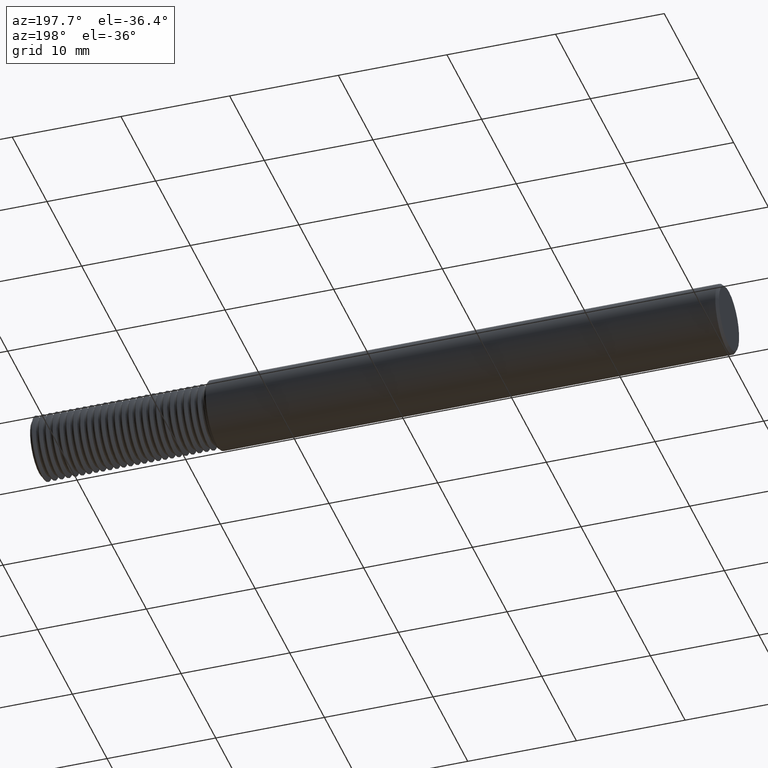
[diagram: clean part render]
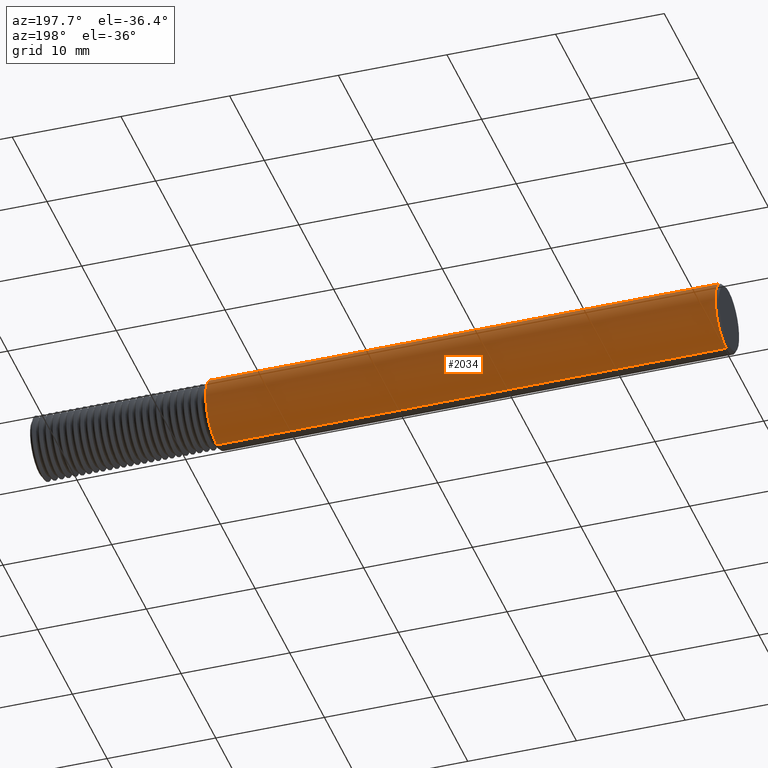
[diagram: same view with one face highlighted and labeled with its STEP entity id]
A machine part, auxiliary view. The second image highlights one B-rep face of the part: STEP entity #2034.
In plain terms, the highlighted cylindrical surface (edge-blend (fillet) strip) has radius 3.1712 mm, axis along (1, -0, -0).
Its self-contained STEP definition (entity closure, byte-faithful):
#11 = CARTESIAN_POINT ( 'NONE',  ( 0.01000000000000016674, 0.000000000000000000, 0.000000000000000000 ) ) ;
#350 = CARTESIAN_POINT ( 'NONE',  ( 0.01000000000000016674, 0.000000000000000000, -0.1248500000000000026 ) ) ;
#358 = LINE ( 'NONE', #4917, #4706 ) ;
#364 = AXIS2_PLACEMENT_3D ( 'NONE', #11, #412, #1272 ) ;
#371 = ORIENTED_EDGE ( 'NONE', *, *, #4272, .F. ) ;
#412 = DIRECTION ( 'NONE',  ( 1.000000000000000000, -0.000000000000000000, -0.000000000000000000 ) ) ;
#452 = CIRCLE ( 'NONE', #4056, 0.1248500000000000026 ) ;
#616 = DIRECTION ( 'NONE',  ( 1.000000000000000000, -0.000000000000000000, -0.000000000000000000 ) ) ;
#670 = EDGE_LOOP ( 'NONE', ( #1659, #2349, #1164, #371 ) ) ;
#783 = CARTESIAN_POINT ( 'NONE',  ( 0.01000000000000016674, 1.528971528735470422E-17, 0.1248500000000000026 ) ) ;
#1097 = VERTEX_POINT ( 'NONE', #4648 ) ;
#1164 = ORIENTED_EDGE ( 'NONE', *, *, #3960, .F. ) ;
#1272 = DIRECTION ( 'NONE',  ( 0.000000000000000000, 0.000000000000000000, 1.000000000000000000 ) ) ;
#1324 = EDGE_CURVE ( 'NONE', #3536, #3369, #2307, .T. ) ;
#1537 = EDGE_CURVE ( 'NONE', #3369, #1097, #1733, .T. ) ;
#1659 = ORIENTED_EDGE ( 'NONE', *, *, #1324, .T. ) ;
#1710 = CARTESIAN_POINT ( 'NONE',  ( 2.500000000000000000, 1.528971528735470422E-17, 0.1248500000000000026 ) ) ;
#1733 = LINE ( 'NONE', #1710, #4494 ) ;
#1825 = CARTESIAN_POINT ( 'NONE',  ( 2.500000000000000000, 0.000000000000000000, 0.000000000000000000 ) ) ;
#1854 = DIRECTION ( 'NONE',  ( 1.000000000000000000, -0.000000000000000000, -0.000000000000000000 ) ) ;
#2034 = ADVANCED_FACE ( 'NONE', ( #2652 ), #3917, .T. ) ;
#2307 = CIRCLE ( 'NONE', #364, 0.1248500000000000026 ) ;
#2349 = ORIENTED_EDGE ( 'NONE', *, *, #1537, .T. ) ;
#2519 = CARTESIAN_POINT ( 'NONE',  ( 1.856150000000000411, 0.000000000000000000, -0.1248500000000000026 ) ) ;
#2652 = FACE_OUTER_BOUND ( 'NONE', #670, .T. ) ;
#2879 = VERTEX_POINT ( 'NONE', #2519 ) ;
#3061 = DIRECTION ( 'NONE',  ( 1.000000000000000000, -0.000000000000000000, -0.000000000000000000 ) ) ;
#3369 = VERTEX_POINT ( 'NONE', #783 ) ;
#3502 = DIRECTION ( 'NONE',  ( 0.000000000000000000, 0.000000000000000000, -1.000000000000000000 ) ) ;
#3536 = VERTEX_POINT ( 'NONE', #350 ) ;
#3772 = CARTESIAN_POINT ( 'NONE',  ( 1.856150000000000411, 0.000000000000000000, 0.000000000000000000 ) ) ;
#3917 = CYLINDRICAL_SURFACE ( 'NONE', #3974, 0.1248500000000000026 ) ;
#3960 = EDGE_CURVE ( 'NONE', #2879, #1097, #452, .T. ) ;
#3974 = AXIS2_PLACEMENT_3D ( 'NONE', #1825, #1854, #3502 ) ;
#4056 = AXIS2_PLACEMENT_3D ( 'NONE', #3772, #3061, #4274 ) ;
#4272 = EDGE_CURVE ( 'NONE', #3536, #2879, #358, .T. ) ;
#4274 = DIRECTION ( 'NONE',  ( 0.000000000000000000, 0.000000000000000000, -1.000000000000000000 ) ) ;
#4494 = VECTOR ( 'NONE', #616, 39.37007874015748143 ) ;
#4516 = DIRECTION ( 'NONE',  ( 1.000000000000000000, -0.000000000000000000, -0.000000000000000000 ) ) ;
#4648 = CARTESIAN_POINT ( 'NONE',  ( 1.856150000000000411, 1.528971528735470422E-17, 0.1248500000000000026 ) ) ;
#4706 = VECTOR ( 'NONE', #4516, 39.37007874015748143 ) ;
#4917 = CARTESIAN_POINT ( 'NONE',  ( 2.500000000000000000, 0.000000000000000000, -0.1248500000000000026 ) ) ;